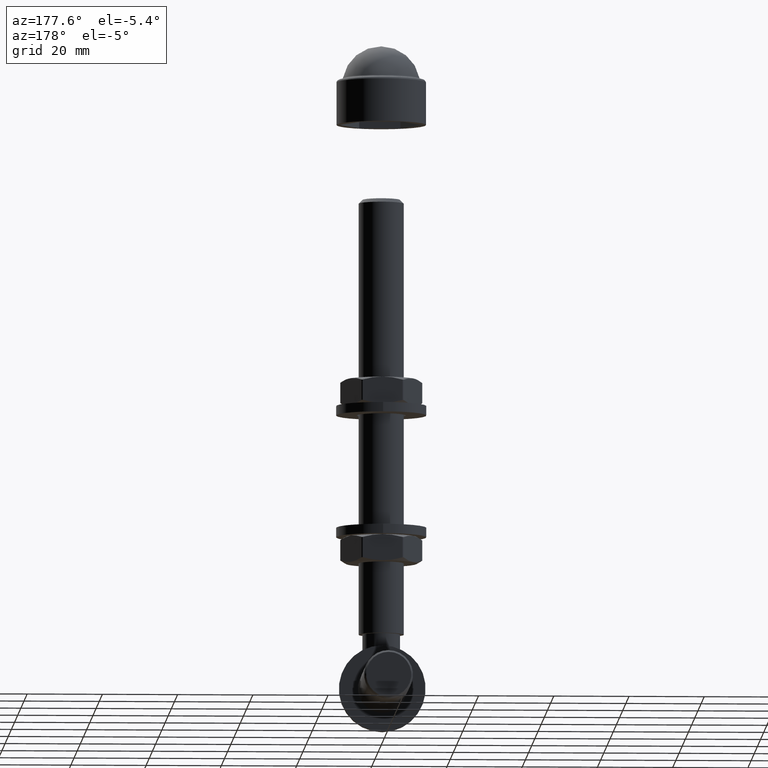
[diagram: clean part render]
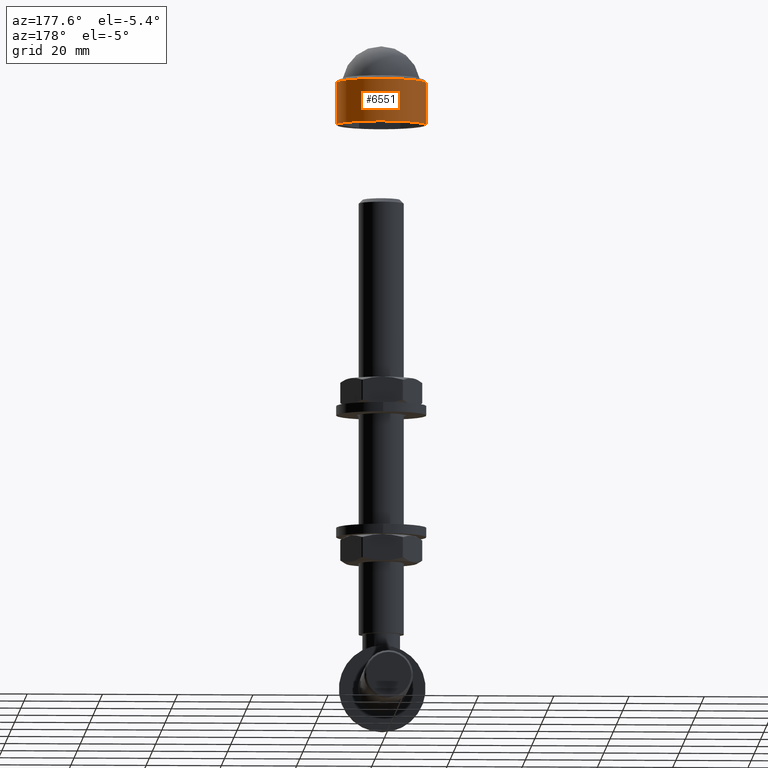
[diagram: same view with one face highlighted and labeled with its STEP entity id]
A machine part, auxiliary view. The second image highlights one B-rep face of the part: STEP entity #6551.
In plain terms, the highlighted cylindrical surface (bore or boss wall) has radius 11.9 mm, axis along (-0, -0, 1).
Its self-contained STEP definition (entity closure, byte-faithful):
#370 = DIRECTION ( 'NONE',  ( -1.444893032729974187E-24, 1.000000000000000000, -0.000000000000000000 ) ) ;
#568 = ORIENTED_EDGE ( 'NONE', *, *, #13485, .T. ) ;
#1068 = EDGE_LOOP ( 'NONE', ( #568 ) ) ;
#1855 = VERTEX_POINT ( 'NONE', #11414 ) ;
#3012 = ORIENTED_EDGE ( 'NONE', *, *, #5265, .T. ) ;
#4542 = AXIS2_PLACEMENT_3D ( 'NONE', #11922, #8320, #8411 ) ;
#5265 = EDGE_CURVE ( 'NONE', #1855, #1855, #10289, .T. ) ;
#5387 = EDGE_LOOP ( 'NONE', ( #3012 ) ) ;
#6342 = CYLINDRICAL_SURFACE ( 'NONE', #4542, 11.90000000000000036 ) ;
#6521 = CARTESIAN_POINT ( 'NONE',  ( -11.90000000000000036, -1.719422708948669389E-23, 0.000000000000000000 ) ) ;
#6551 = ADVANCED_FACE ( 'NONE', ( #9352, #7091 ), #6342, .T. ) ;
#7091 = FACE_OUTER_BOUND ( 'NONE', #1068, .T. ) ;
#7264 = DIRECTION ( 'NONE',  ( 1.444893032729974187E-24, -1.000000000000000000, 0.000000000000000000 ) ) ;
#8320 = DIRECTION ( 'NONE',  ( -1.444893032729974187E-24, 1.000000000000000000, -0.000000000000000000 ) ) ;
#8411 = DIRECTION ( 'NONE',  ( -1.000000000000000000, 0.000000000000000000, 0.000000000000000000 ) ) ;
#8474 = DIRECTION ( 'NONE',  ( 1.000000000000000000, 0.000000000000000000, 0.000000000000000000 ) ) ;
#8797 = VERTEX_POINT ( 'NONE', #6521 ) ;
#8802 = DIRECTION ( 'NONE',  ( -1.000000000000000000, -1.444893032729974187E-24, 0.000000000000000000 ) ) ;
#9352 = FACE_OUTER_BOUND ( 'NONE', #5387, .T. ) ;
#10289 = CIRCLE ( 'NONE', #13258, 11.90000000000000036 ) ;
#11167 = CARTESIAN_POINT ( 'NONE',  ( 5.739718509874450723E-39, 0.000000000000000000, 0.000000000000000000 ) ) ;
#11414 = CARTESIAN_POINT ( 'NONE',  ( 11.90000000000000036, 11.30000000000000071, 0.000000000000000000 ) ) ;
#11922 = CARTESIAN_POINT ( 'NONE',  ( -3.034275368732945463E-23, 21.00000000000000000, 0.000000000000000000 ) ) ;
#11930 = CARTESIAN_POINT ( 'NONE',  ( -1.632729126984870402E-23, 11.30000000000000071, 0.000000000000000000 ) ) ;
#13258 = AXIS2_PLACEMENT_3D ( 'NONE', #11930, #7264, #8474 ) ;
#13412 = AXIS2_PLACEMENT_3D ( 'NONE', #11167, #370, #8802 ) ;
#13485 = EDGE_CURVE ( 'NONE', #8797, #8797, #14394, .T. ) ;
#14394 = CIRCLE ( 'NONE', #13412, 11.90000000000000036 ) ;